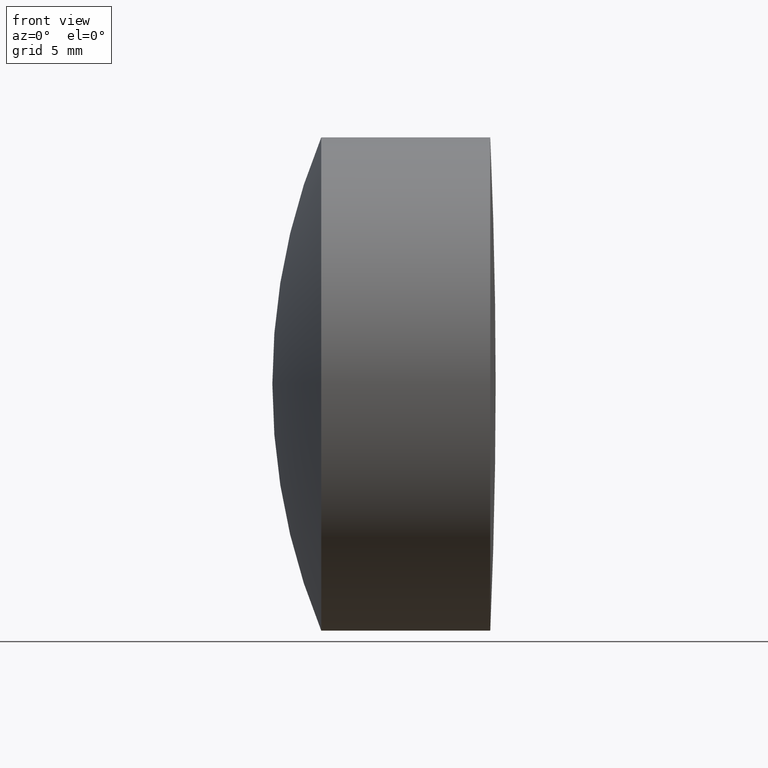
[diagram: clean part render]
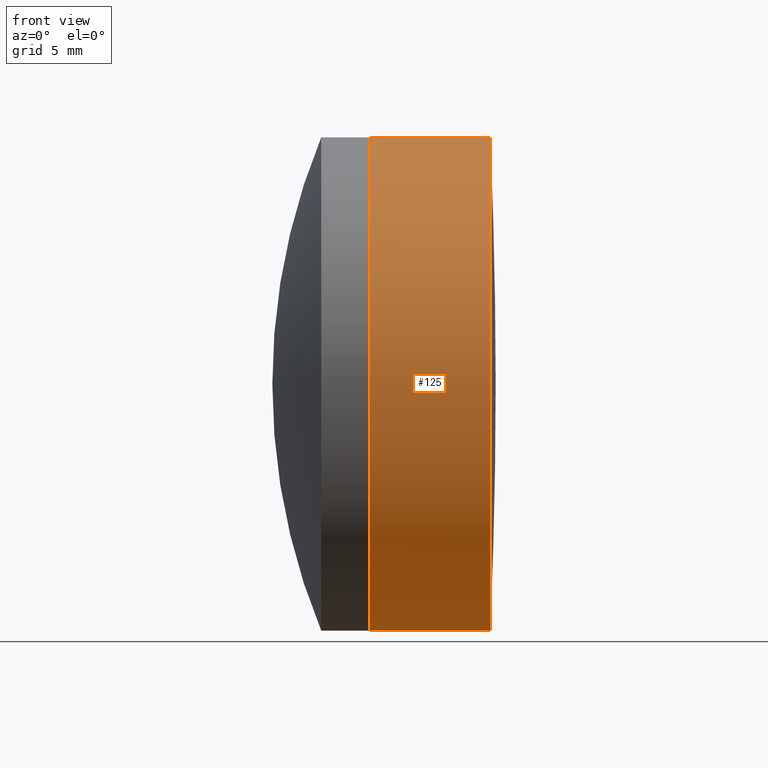
[diagram: same view with one face highlighted and labeled with its STEP entity id]
A machine part, front view. The second image highlights one B-rep face of the part: STEP entity #125.
In plain terms, the highlighted cylindrical surface (partial cylindrical patch) has radius 12.7 mm, axis along (-1, -0, -0).
Its self-contained STEP definition (entity closure, byte-faithful):
#8 = LINE ( 'NONE', #189, #239 ) ;
#9 = VERTEX_POINT ( 'NONE', #72 ) ;
#14 = EDGE_CURVE ( 'NONE', #281, #97, #102, .T. ) ;
#15 = ORIENTED_EDGE ( 'NONE', *, *, #114, .F. ) ;
#22 = DIRECTION ( 'NONE',  ( 0.0000000000000000000, 0.0000000000000000000, 1.000000000000000000 ) ) ;
#25 = DIRECTION ( 'NONE',  ( -1.000000000000000000, -0.0000000000000000000, -0.0000000000000000000 ) ) ;
#29 = VERTEX_POINT ( 'NONE', #283 ) ;
#42 = EDGE_CURVE ( 'NONE', #29, #97, #157, .T. ) ;
#62 = AXIS2_PLACEMENT_3D ( 'NONE', #234, #277, #347 ) ;
#72 = CARTESIAN_POINT ( 'NONE',  ( 235.6186784746321600, 1.555301434917140800E-015, -12.70000000000001700 ) ) ;
#86 = CARTESIAN_POINT ( 'NONE',  ( 229.4261485882427700, 0.0000000000000000000, 12.70000000000002200 ) ) ;
#97 = VERTEX_POINT ( 'NONE', #86 ) ;
#102 = CIRCLE ( 'NONE', #316, 12.70000000000002400 ) ;
#114 = EDGE_CURVE ( 'NONE', #9, #281, #8, .T. ) ;
#116 = ORIENTED_EDGE ( 'NONE', *, *, #14, .F. ) ;
#125 = ADVANCED_FACE ( 'NONE', ( #345 ), #190, .T. ) ;
#145 = AXIS2_PLACEMENT_3D ( 'NONE', #256, #25, #308 ) ;
#157 = LINE ( 'NONE', #282, #241 ) ;
#189 = CARTESIAN_POINT ( 'NONE',  ( -0.5519199926577972300, 1.555301434917141000E-015, -12.70000000000002100 ) ) ;
#190 = CYLINDRICAL_SURFACE ( 'NONE', #145, 12.70000000000002100 ) ;
#203 = DIRECTION ( 'NONE',  ( -1.000000000000000000, -0.0000000000000000000, -0.0000000000000000000 ) ) ;
#209 = DIRECTION ( 'NONE',  ( -1.000000000000000000, -0.0000000000000000000, -0.0000000000000000000 ) ) ;
#222 = CIRCLE ( 'NONE', #62, 12.70000000000001700 ) ;
#234 = CARTESIAN_POINT ( 'NONE',  ( 235.6186784746321600, 0.0000000000000000000, 0.0000000000000000000 ) ) ;
#239 = VECTOR ( 'NONE', #203, 1000.000000000000000 ) ;
#241 = VECTOR ( 'NONE', #340, 1000.000000000000000 ) ;
#248 = CARTESIAN_POINT ( 'NONE',  ( 229.4261485882427700, 1.555301434917141000E-015, -12.70000000000002600 ) ) ;
#255 = EDGE_CURVE ( 'NONE', #9, #29, #222, .T. ) ;
#256 = CARTESIAN_POINT ( 'NONE',  ( -0.5519199926577972300, 0.0000000000000000000, 0.0000000000000000000 ) ) ;
#277 = DIRECTION ( 'NONE',  ( -1.000000000000000000, -0.0000000000000000000, -0.0000000000000000000 ) ) ;
#281 = VERTEX_POINT ( 'NONE', #248 ) ;
#282 = CARTESIAN_POINT ( 'NONE',  ( -0.5519199926577972300, 0.0000000000000000000, 12.70000000000002100 ) ) ;
#283 = CARTESIAN_POINT ( 'NONE',  ( 235.6186784746321600, 0.0000000000000000000, 12.70000000000001700 ) ) ;
#294 = EDGE_LOOP ( 'NONE', ( #15, #310, #318, #116 ) ) ;
#304 = CARTESIAN_POINT ( 'NONE',  ( 229.4261485882427700, 0.0000000000000000000, 0.0000000000000000000 ) ) ;
#308 = DIRECTION ( 'NONE',  ( 0.0000000000000000000, 0.0000000000000000000, 1.000000000000000000 ) ) ;
#310 = ORIENTED_EDGE ( 'NONE', *, *, #255, .T. ) ;
#316 = AXIS2_PLACEMENT_3D ( 'NONE', #304, #209, #22 ) ;
#318 = ORIENTED_EDGE ( 'NONE', *, *, #42, .T. ) ;
#340 = DIRECTION ( 'NONE',  ( -1.000000000000000000, -0.0000000000000000000, -0.0000000000000000000 ) ) ;
#345 = FACE_OUTER_BOUND ( 'NONE', #294, .T. ) ;
#347 = DIRECTION ( 'NONE',  ( 0.0000000000000000000, 0.0000000000000000000, 1.000000000000000000 ) ) ;